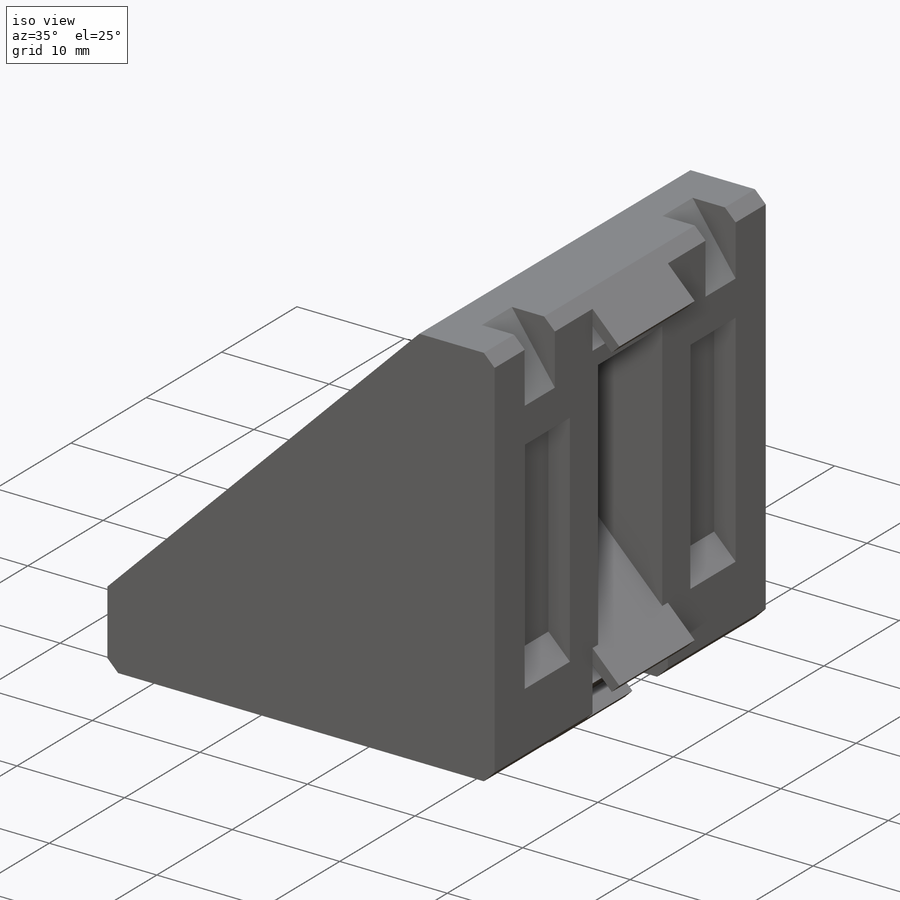
[diagram: iso view]
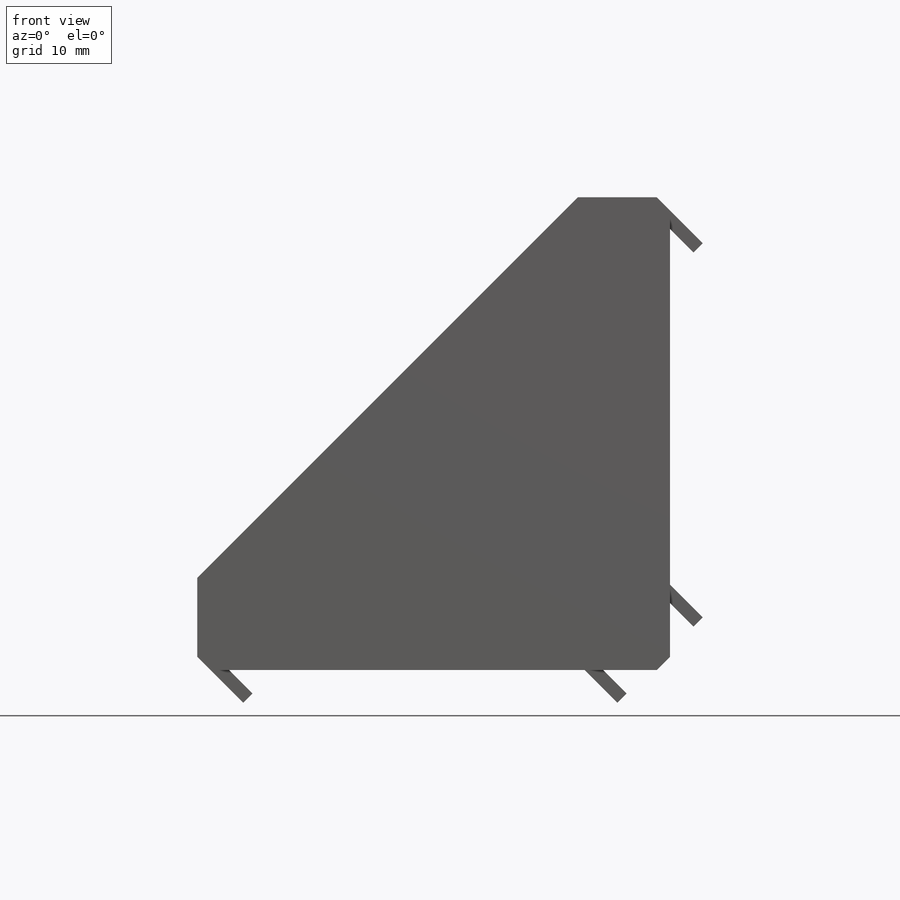
[diagram: front view]
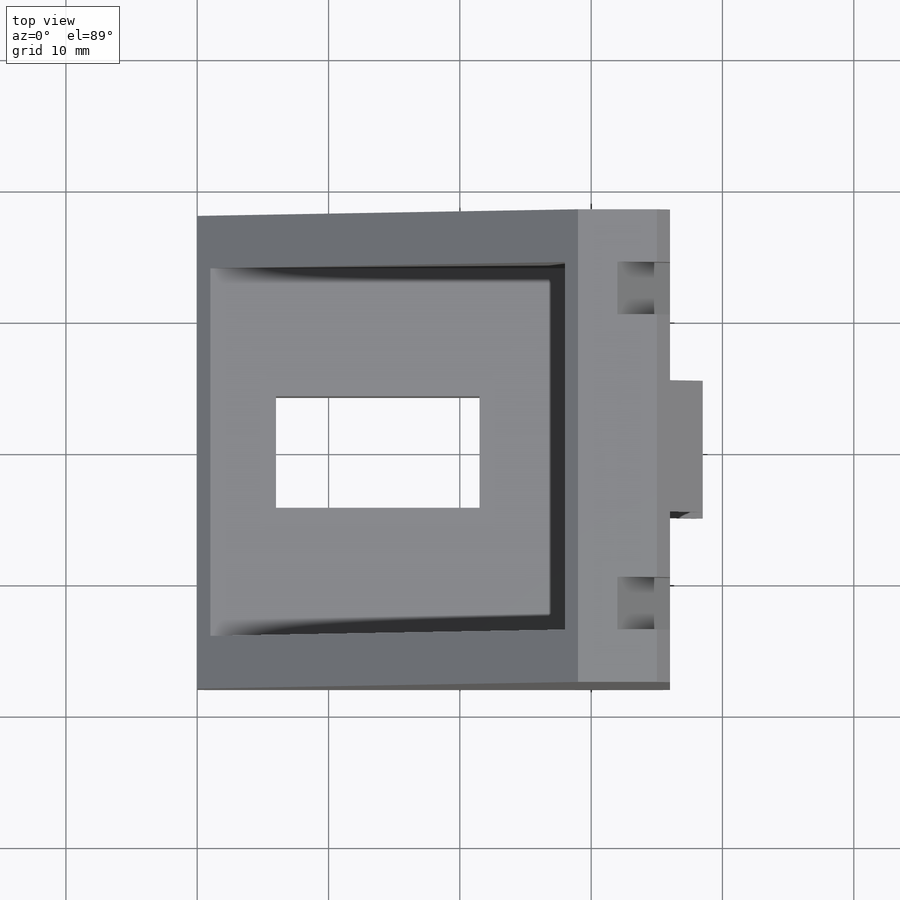
[diagram: top view]
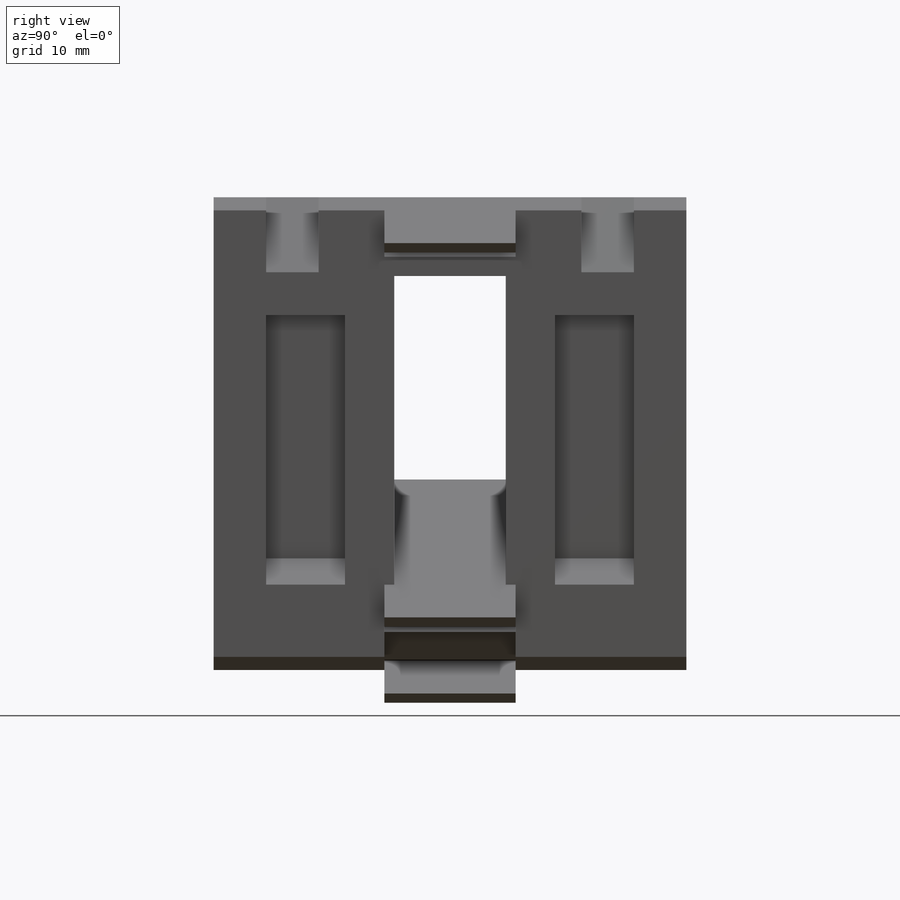
[diagram: right view]
SOLIDWORKS PART (.sldprt)
format: sldprt  version: not decoded by parser v0  size: 339,968 bytes
history: native  units: mm
features: plane x6, sketch x6, extrude x4, mirror x3, cut_extrude x2, material x1, chamfer x1 (+12 scaffold rows collapsed)
feature tree (35):
  scaffold x12  (default folders/planes/origin — collapsed)
  material  "材质 <未指定>"
  plane  "前视基准面"
  plane  "上视基准面"
  plane  "右视基准面"
  sketch  "草图1"  dims[D1=8.0mm]
  extrude  "拉伸1"  Depth=5mm
  sketch  "草图2"  dims[D1=8.0mm]
  extrude  "拉伸2"  Depth=13mm
  sketch  "草图3"
  extrude  "拉伸3"  Depth=0.75mm
  plane  "基准面4"
  mirror  "镜向1"
  plane  "基准面5"  Offset=4mm
  sketch  "草图4"  dims[D1=2.0mm D2=9.0mm D3=18.5mm D4=20.5mm]
  cut_extrude  "切除-拉伸1"  Depth=6mm
  sketch  "草图6"  dims[c1.D1=4.0mm c1.D2=~10.242458mm c2.D2=55.0deg]
  cut_extrude  "切除-拉伸2"  Depth=4mm
  mirror  "镜向2"
  plane  "基准面6"
  sketch  "草图7"
  extrude  "拉伸5"  Depth=4mm
  mirror  "镜向4"
  chamfer  "倒角1"  Distance=1mm Angle=45deg
decode coverage: 11 of 16 modeling features carry decoded parameters
note: ~ marks probable driven/reference dimensions
note: suppression state not decoded; provenance and decode notes live in map.json
